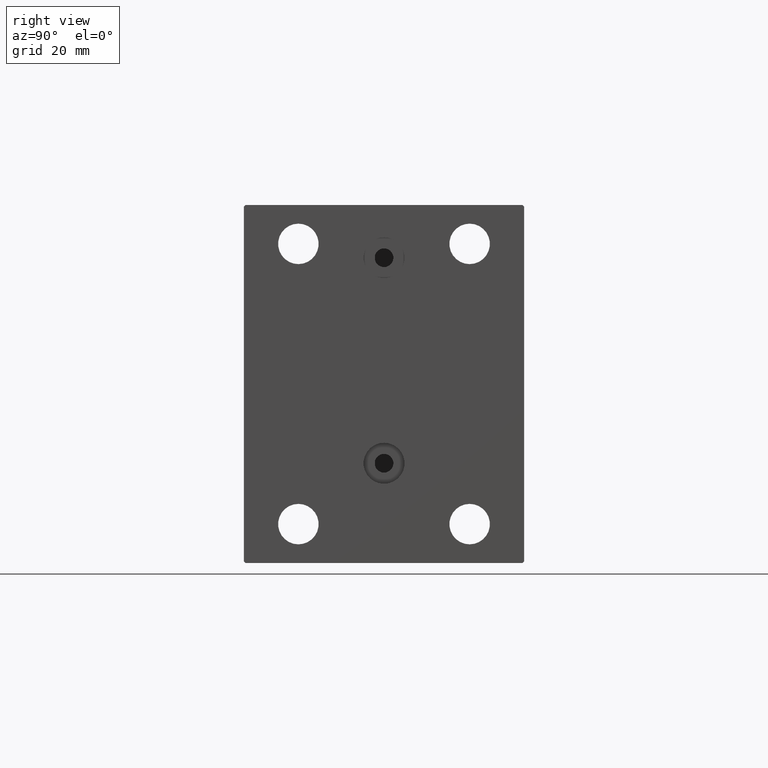
[diagram: clean part render]
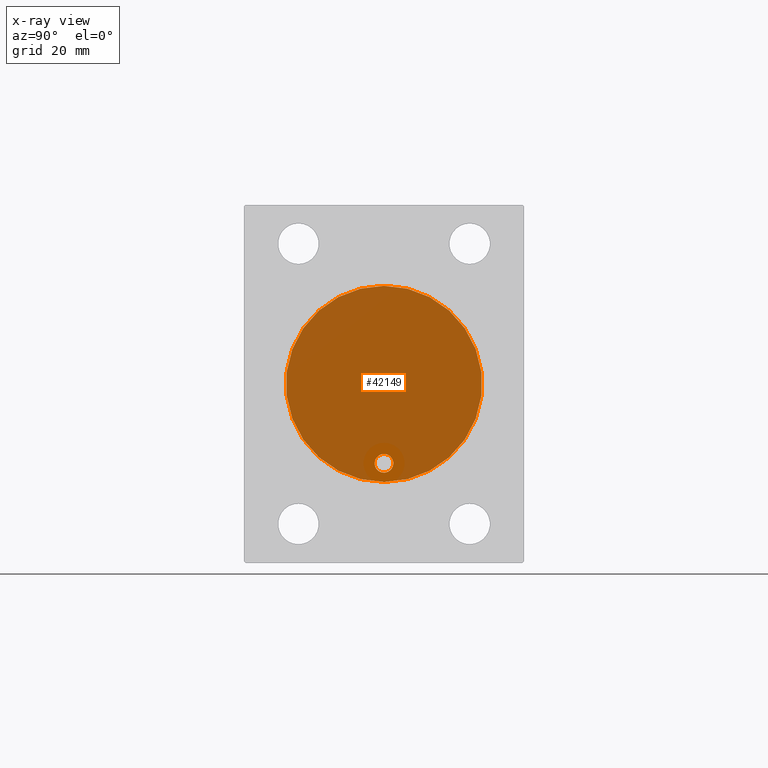
[diagram: x-ray — body ghosted, one internal face saturated and labeled with its STEP entity id]
A machine part, right view, then the same camera in x-ray: the body is ghosted and one INTERNAL B-rep face — a face not visible from any outside direction — is saturated and labeled: STEP entity #42149.
In plain terms, the highlighted planar face has unit normal (-1, 0, 0).
Its self-contained STEP definition (entity closure, byte-faithful):
#327 = CARTESIAN_POINT ( 'NONE',  ( 51.00000000000000000, 3.857637417314162689E-15, -31.50000000000000000 ) ) ;
#4427 = CIRCLE ( 'NONE', #30786, 3.000000000000002665 ) ;
#6150 = DIRECTION ( 'NONE',  ( 0.000000000000000000, 0.000000000000000000, 1.000000000000000000 ) ) ;
#6719 = EDGE_CURVE ( 'NONE', #7214, #38123, #27762, .T. ) ;
#7214 = VERTEX_POINT ( 'NONE', #327 ) ;
#7292 = EDGE_CURVE ( 'NONE', #7793, #45149, #4427, .T. ) ;
#7793 = VERTEX_POINT ( 'NONE', #36004 ) ;
#10733 = FACE_OUTER_BOUND ( 'NONE', #37650, .T. ) ;
#10960 = DIRECTION ( 'NONE',  ( -1.000000000000000000, 0.000000000000000000, 0.000000000000000000 ) ) ;
#11316 = CIRCLE ( 'NONE', #37673, 31.50000000000000000 ) ;
#11495 = EDGE_CURVE ( 'NONE', #38123, #7214, #11316, .T. ) ;
#12528 = DIRECTION ( 'NONE',  ( -1.000000000000000000, 0.000000000000000000, 0.000000000000000000 ) ) ;
#12693 = AXIS2_PLACEMENT_3D ( 'NONE', #13383, #38137, #20942 ) ;
#13378 = DIRECTION ( 'NONE',  ( 0.000000000000000000, 0.000000000000000000, 1.000000000000000000 ) ) ;
#13383 = CARTESIAN_POINT ( 'NONE',  ( 51.00000000000000000, 0.000000000000000000, 0.000000000000000000 ) ) ;
#19023 = ORIENTED_EDGE ( 'NONE', *, *, #6719, .T. ) ;
#20942 = DIRECTION ( 'NONE',  ( 0.000000000000000000, 0.000000000000000000, 1.000000000000000000 ) ) ;
#22395 = CARTESIAN_POINT ( 'NONE',  ( 51.00000000000000000, 3.490243377569955667E-15, -22.49999999999999289 ) ) ;
#24015 = CARTESIAN_POINT ( 'NONE',  ( 51.00000000000000000, 3.122849337825749828E-15, -25.49999999999999645 ) ) ;
#26421 = ORIENTED_EDGE ( 'NONE', *, *, #40606, .F. ) ;
#27232 = ORIENTED_EDGE ( 'NONE', *, *, #7292, .F. ) ;
#27324 = DIRECTION ( 'NONE',  ( -1.000000000000000000, 0.000000000000000000, 0.000000000000000000 ) ) ;
#27762 = CIRCLE ( 'NONE', #12693, 31.50000000000000000 ) ;
#27781 = AXIS2_PLACEMENT_3D ( 'NONE', #24015, #27324, #13378 ) ;
#28442 = FACE_BOUND ( 'NONE', #33681, .T. ) ;
#30786 = AXIS2_PLACEMENT_3D ( 'NONE', #37351, #44426, #33145 ) ;
#33145 = DIRECTION ( 'NONE',  ( 0.000000000000000000, 0.000000000000000000, 1.000000000000000000 ) ) ;
#33681 = EDGE_LOOP ( 'NONE', ( #27232, #26421 ) ) ;
#35948 = ORIENTED_EDGE ( 'NONE', *, *, #11495, .T. ) ;
#36004 = CARTESIAN_POINT ( 'NONE',  ( 51.00000000000000000, 3.122849337825749828E-15, -28.49999999999999645 ) ) ;
#37351 = CARTESIAN_POINT ( 'NONE',  ( 51.00000000000000000, 3.122849337825749828E-15, -25.49999999999999645 ) ) ;
#37650 = EDGE_LOOP ( 'NONE', ( #35948, #19023 ) ) ;
#37673 = AXIS2_PLACEMENT_3D ( 'NONE', #38197, #12528, #6150 ) ;
#37923 = CARTESIAN_POINT ( 'NONE',  ( 51.00000000000000000, 0.000000000000000000, 31.50000000000000000 ) ) ;
#38123 = VERTEX_POINT ( 'NONE', #37923 ) ;
#38137 = DIRECTION ( 'NONE',  ( -1.000000000000000000, 0.000000000000000000, 0.000000000000000000 ) ) ;
#38197 = CARTESIAN_POINT ( 'NONE',  ( 51.00000000000000000, 0.000000000000000000, 0.000000000000000000 ) ) ;
#39099 = AXIS2_PLACEMENT_3D ( 'NONE', #46112, #10960, #42586 ) ;
#40606 = EDGE_CURVE ( 'NONE', #45149, #7793, #43589, .T. ) ;
#42149 = ADVANCED_FACE ( 'NONE', ( #28442, #10733 ), #43043, .T. ) ;
#42586 = DIRECTION ( 'NONE',  ( 0.000000000000000000, 0.000000000000000000, 1.000000000000000000 ) ) ;
#43043 = PLANE ( 'NONE',  #39099 ) ;
#43589 = CIRCLE ( 'NONE', #27781, 3.000000000000002665 ) ;
#44426 = DIRECTION ( 'NONE',  ( -1.000000000000000000, 0.000000000000000000, 0.000000000000000000 ) ) ;
#45149 = VERTEX_POINT ( 'NONE', #22395 ) ;
#46112 = CARTESIAN_POINT ( 'NONE',  ( 51.00000000000000000, 0.000000000000000000, 0.000000000000000000 ) ) ;